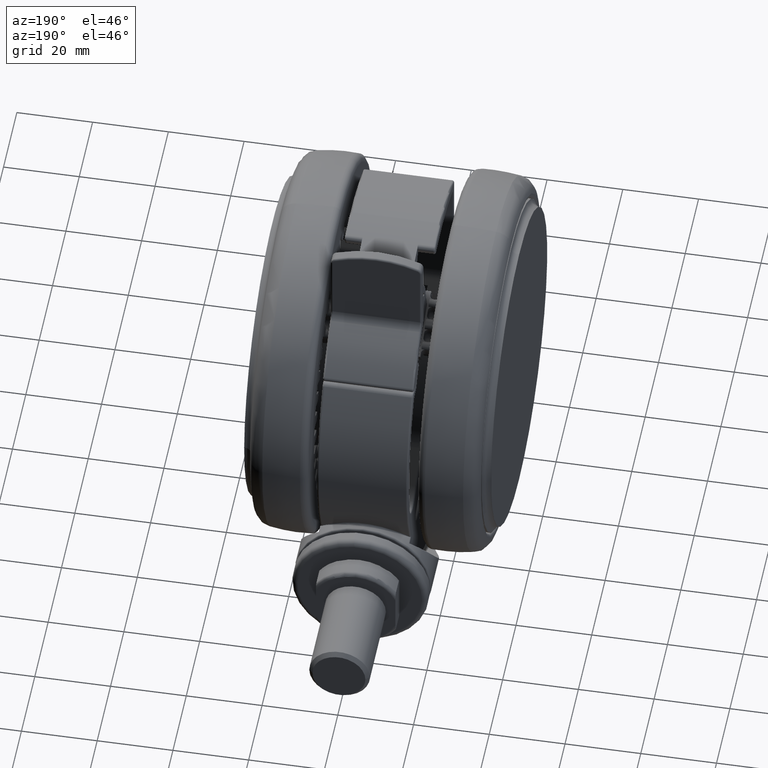
[diagram: clean part render]
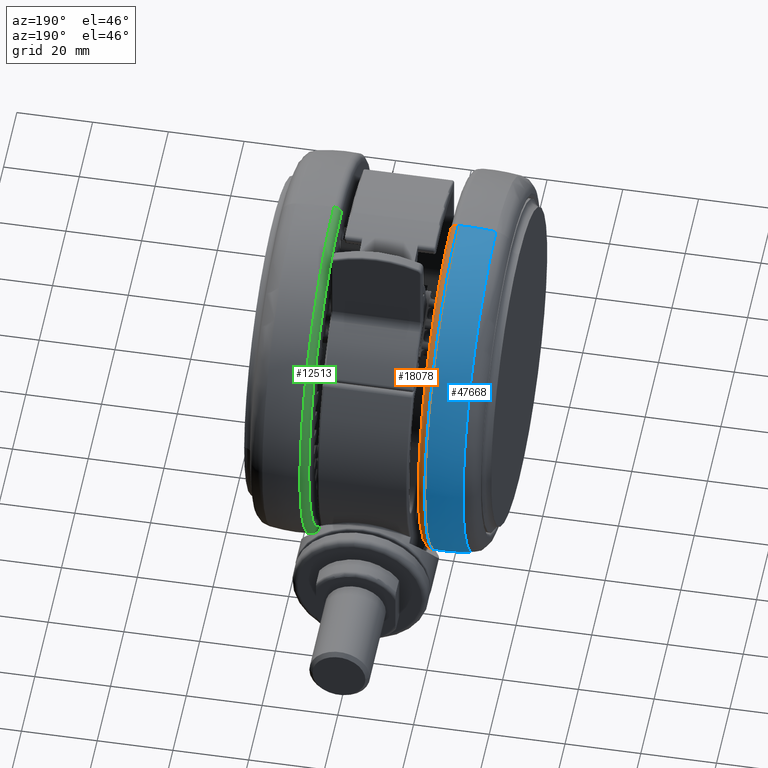
[diagram: same view with three faces highlighted in distinct colors, each labeled with its STEP entity id]
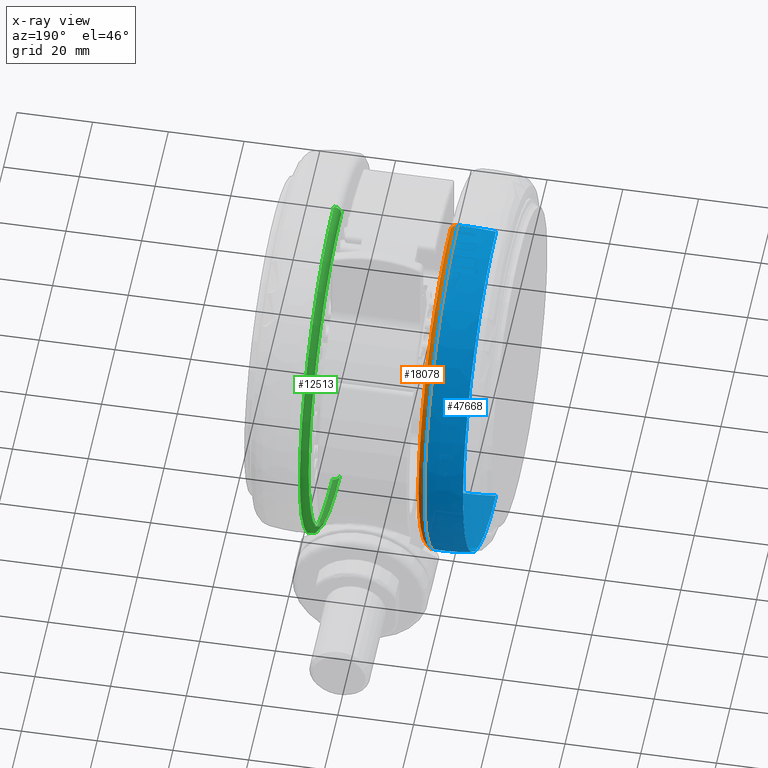
[diagram: x-ray of the same camera — body ghosted, the three highlighted faces saturated]
A machine part, auxiliary view with three faces highlighted in distinct colors.
The next image is the same camera in x-ray (body ghosted, the three faces saturated) — at least one of them is partly hidden behind the body in this view.
Their STEP definitions:

[orange] entity #18078 — the highlighted toroidal blend (fillet) surface has major radius 48 mm and minor (blend) radius 2 mm.
#1081 = VERTEX_POINT ( 'NONE', #33713 ) ;
#4143 = DIRECTION ( 'NONE',  ( -0.02026128721468460600, -0.9997947190500680000, 0.0000000000000000000 ) ) ;
#4256 = DIRECTION ( 'NONE',  ( 0.02026128721468458900, 0.9997947190500678900, 0.0000000000000000000 ) ) ;
#4986 = ORIENTED_EDGE ( 'NONE', *, *, #57773, .F. ) ;
#6960 = AXIS2_PLACEMENT_3D ( 'NONE', #55346, #17549, #61669 ) ;
#7252 = ORIENTED_EDGE ( 'NONE', *, *, #40043, .T. ) ;
#8065 = VERTEX_POINT ( 'NONE', #36881 ) ;
#16549 = CARTESIAN_POINT ( 'NONE',  ( 0.9725424830765194700, 47.99018331778844300, -49.09999999999984500 ) ) ;
#17549 = DIRECTION ( 'NONE',  ( -0.0000000000000000000, 0.0000000000000000000, -1.000000000000000000 ) ) ;
#18078 = ADVANCED_FACE ( 'NONE', ( #56397 ), #77117, .T. ) ;
#19636 = DIRECTION ( 'NONE',  ( -0.02026128721468459900, -0.9997947190500677800, 0.0000000000000000000 ) ) ;
#22890 = DIRECTION ( 'NONE',  ( -0.02026128721468448100, -0.9997947190500678900, 0.0000000000000000000 ) ) ;
#27137 = EDGE_CURVE ( 'NONE', #1081, #52486, #42143, .T. ) ;
#32041 = DIRECTION ( 'NONE',  ( -0.0000000000000000000, 0.0000000000000000000, -1.000000000000000000 ) ) ;
#33713 = CARTESIAN_POINT ( 'NONE',  ( -0.9725423849658322300, -47.99017363423747900, -47.09999999999985200 ) ) ;
#34971 = ORIENTED_EDGE ( 'NONE', *, *, #71186, .T. ) ;
#36881 = CARTESIAN_POINT ( 'NONE',  ( 0.9725424830765194700, 47.99018331778844300, -47.09999999999985200 ) ) ;
#39829 = AXIS2_PLACEMENT_3D ( 'NONE', #44728, #32041, #19636 ) ;
#40043 = EDGE_CURVE ( 'NONE', #1081, #8065, #53306, .T. ) ;
#42022 = DIRECTION ( 'NONE',  ( -0.0000000000000000000, 0.0000000000000000000, -1.000000000000000000 ) ) ;
#42134 = DIRECTION ( 'NONE',  ( 0.9997947190500678900, -0.02026128721468460300, -0.0000000000000000000 ) ) ;
#42143 = CIRCLE ( 'NONE', #43516, 1.999999999999999800 ) ;
#43516 = AXIS2_PLACEMENT_3D ( 'NONE', #79890, #42134, #4256 ) ;
#44728 = CARTESIAN_POINT ( 'NONE',  ( 4.905534659038757200E-008, 4.841775480546317600E-006, -49.09999999999984500 ) ) ;
#50566 = EDGE_LOOP ( 'NONE', ( #7252, #34971, #4986, #77276 ) ) ;
#52486 = VERTEX_POINT ( 'NONE', #74782 ) ;
#53281 = CIRCLE ( 'NONE', #6960, 50.00000000000000700 ) ;
#53306 = CIRCLE ( 'NONE', #64429, 48.00003196817215200 ) ;
#55346 = CARTESIAN_POINT ( 'NONE',  ( 4.905534659038757200E-008, 4.841775480546317600E-006, -49.08869196450866900 ) ) ;
#56397 = FACE_OUTER_BOUND ( 'NONE', #50566, .T. ) ;
#57773 = EDGE_CURVE ( 'NONE', #52486, #81918, #53281, .T. ) ;
#60676 = DIRECTION ( 'NONE',  ( -0.9997947190500678900, 0.02026128721468448100, 0.0000000000000000000 ) ) ;
#61486 = AXIS2_PLACEMENT_3D ( 'NONE', #16549, #60676, #22890 ) ;
#61669 = DIRECTION ( 'NONE',  ( -0.02026128721468460300, -0.9997947190500677800, 0.0000000000000000000 ) ) ;
#64429 = AXIS2_PLACEMENT_3D ( 'NONE', #79773, #42022, #4143 ) ;
#64491 = CARTESIAN_POINT ( 'NONE',  ( 1.013064409789570500, 49.98974079427887300, -49.08869196450866900 ) ) ;
#71186 = EDGE_CURVE ( 'NONE', #8065, #81918, #79631, .T. ) ;
#74782 = CARTESIAN_POINT ( 'NONE',  ( -1.013064311678883300, -49.98973111072790900, -49.08869196450866900 ) ) ;
#77117 = TOROIDAL_SURFACE ( 'NONE', #39829, 48.00003196817215900, 1.999999999999999100 ) ;
#77276 = ORIENTED_EDGE ( 'NONE', *, *, #27137, .F. ) ;
#79631 = CIRCLE ( 'NONE', #61486, 1.999999999999999800 ) ;
#79773 = CARTESIAN_POINT ( 'NONE',  ( 4.905534659038757200E-008, 4.841775480546317600E-006, -47.09999999999985200 ) ) ;
#79890 = CARTESIAN_POINT ( 'NONE',  ( -0.9725423849658322300, -47.99017363423747900, -49.09999999999984500 ) ) ;
#81918 = VERTEX_POINT ( 'NONE', #64491 ) ;

[blue] entity #47668 — the highlighted toroidal blend (fillet) surface has major radius 36.0786 mm and minor (blend) radius 86.08 mm.
#104 = AXIS2_PLACEMENT_3D ( 'NONE', #21795, #65928, #28143 ) ;
#5801 = CARTESIAN_POINT ( 'NONE',  ( 1.002373416269179800, 49.46219292677030700, -59.10420351503971400 ) ) ;
#6677 = VERTEX_POINT ( 'NONE', #5801 ) ;
#6960 = AXIS2_PLACEMENT_3D ( 'NONE', #55346, #17549, #61669 ) ;
#11699 = DIRECTION ( 'NONE',  ( -0.0000000000000000000, 0.0000000000000000000, -1.000000000000000000 ) ) ;
#12055 = ORIENTED_EDGE ( 'NONE', *, *, #28053, .T. ) ;
#12249 = CIRCLE ( 'NONE', #45715, 49.47234381472850400 ) ;
#15249 = CARTESIAN_POINT ( 'NONE',  ( -1.002373318158492600, -49.46218324321935000, -59.10420351503971400 ) ) ;
#17549 = DIRECTION ( 'NONE',  ( -0.0000000000000000000, 0.0000000000000000000, -1.000000000000000000 ) ) ;
#18283 = EDGE_CURVE ( 'NONE', #52486, #62014, #42559, .T. ) ;
#20182 = TOROIDAL_SURFACE ( 'NONE', #48132, -36.07862408987032400, 86.08000000000001300 ) ;
#21795 = CARTESIAN_POINT ( 'NONE',  ( 0.7309994140508480100, 36.07122267742039400, -49.57538981204889000 ) ) ;
#22487 = EDGE_LOOP ( 'NONE', ( #79722, #12055, #54558, #48412 ) ) ;
#28053 = EDGE_CURVE ( 'NONE', #81918, #6677, #68981, .T. ) ;
#28143 = DIRECTION ( 'NONE',  ( 0.02026128721468459900, 0.9997947190500677800, 0.0000000000000000000 ) ) ;
#30682 = CARTESIAN_POINT ( 'NONE',  ( -0.7309993159401505500, -36.07121299386943000, -49.57538981204889000 ) ) ;
#34998 = CARTESIAN_POINT ( 'NONE',  ( 4.905534659038757200E-008, 4.841775480546317600E-006, -49.57538981204889000 ) ) ;
#37042 = DIRECTION ( 'NONE',  ( -0.02026128721468447800, -0.9997947190500677800, 0.0000000000000000000 ) ) ;
#40914 = FACE_OUTER_BOUND ( 'NONE', #22487, .T. ) ;
#41052 = DIRECTION ( 'NONE',  ( -0.0000000000000000000, 0.0000000000000000000, -1.000000000000000000 ) ) ;
#42559 = CIRCLE ( 'NONE', #104, 86.08000000000002700 ) ;
#45715 = AXIS2_PLACEMENT_3D ( 'NONE', #49510, #11699, #55876 ) ;
#47668 = ADVANCED_FACE ( 'NONE', ( #40914 ), #20182, .T. ) ;
#48132 = AXIS2_PLACEMENT_3D ( 'NONE', #34998, #41052, #79087 ) ;
#48412 = ORIENTED_EDGE ( 'NONE', *, *, #18283, .F. ) ;
#49510 = CARTESIAN_POINT ( 'NONE',  ( 4.905534659038757200E-008, 4.841775480546317600E-006, -59.10420351503971400 ) ) ;
#51269 = EDGE_CURVE ( 'NONE', #62014, #6677, #12249, .T. ) ;
#52486 = VERTEX_POINT ( 'NONE', #74782 ) ;
#53281 = CIRCLE ( 'NONE', #6960, 50.00000000000000700 ) ;
#54558 = ORIENTED_EDGE ( 'NONE', *, *, #51269, .F. ) ;
#55346 = CARTESIAN_POINT ( 'NONE',  ( 4.905534659038757200E-008, 4.841775480546317600E-006, -49.08869196450866900 ) ) ;
#55876 = DIRECTION ( 'NONE',  ( -0.02026128721468459900, -0.9997947190500677800, 0.0000000000000000000 ) ) ;
#57773 = EDGE_CURVE ( 'NONE', #52486, #81918, #53281, .T. ) ;
#58357 = AXIS2_PLACEMENT_3D ( 'NONE', #30682, #74816, #37042 ) ;
#61669 = DIRECTION ( 'NONE',  ( -0.02026128721468460300, -0.9997947190500677800, 0.0000000000000000000 ) ) ;
#62014 = VERTEX_POINT ( 'NONE', #15249 ) ;
#64491 = CARTESIAN_POINT ( 'NONE',  ( 1.013064409789570500, 49.98974079427887300, -49.08869196450866900 ) ) ;
#65928 = DIRECTION ( 'NONE',  ( 0.9997947190500678900, -0.02026128721468460300, -0.0000000000000000000 ) ) ;
#68981 = CIRCLE ( 'NONE', #58357, 86.08000000000002700 ) ;
#74782 = CARTESIAN_POINT ( 'NONE',  ( -1.013064311678883300, -49.98973111072790900, -49.08869196450866900 ) ) ;
#74816 = DIRECTION ( 'NONE',  ( -0.9997947190500678900, 0.02026128721468448100, 0.0000000000000000000 ) ) ;
#79087 = DIRECTION ( 'NONE',  ( -0.02026128721468459900, -0.9997947190500677800, 0.0000000000000000000 ) ) ;
#79722 = ORIENTED_EDGE ( 'NONE', *, *, #57773, .T. ) ;
#81918 = VERTEX_POINT ( 'NONE', #64491 ) ;

[green] entity #12513 — the highlighted toroidal blend (fillet) surface has major radius 48 mm and minor (blend) radius 2 mm.
#841 = CIRCLE ( 'NONE', #19567, 50.00000000000000000 ) ;
#3465 = CARTESIAN_POINT ( 'NONE',  ( 1.633475509932271500E-013, -48.00003196817230100, -16.09999999999995500 ) ) ;
#3721 = DIRECTION ( 'NONE',  ( 0.0000000000000000000, 0.0000000000000000000, 1.000000000000000000 ) ) ;
#5667 = DIRECTION ( 'NONE',  ( 1.000000000000000000, 3.597816489175897900E-015, -0.0000000000000000000 ) ) ;
#9842 = DIRECTION ( 'NONE',  ( 3.475351809261156500E-015, -1.000000000000000000, 0.0000000000000000000 ) ) ;
#10210 = VERTEX_POINT ( 'NONE', #55862 ) ;
#10959 = CIRCLE ( 'NONE', #74665, 2.000000000000001800 ) ;
#12084 = CIRCLE ( 'NONE', #50009, 2.000000000000001800 ) ;
#12513 = ADVANCED_FACE ( 'NONE', ( #34099 ), #65645, .T. ) ;
#16748 = DIRECTION ( 'NONE',  ( -3.597816489175897900E-015, 1.000000000000000000, 0.0000000000000000000 ) ) ;
#19567 = AXIS2_PLACEMENT_3D ( 'NONE', #41603, #3721, #47950 ) ;
#20993 = AXIS2_PLACEMENT_3D ( 'NONE', #54568, #41297, #16748 ) ;
#24588 = CARTESIAN_POINT ( 'NONE',  ( -1.833602714107484800E-013, 49.99999999999985800, -16.11130803549113100 ) ) ;
#25375 = EDGE_CURVE ( 'NONE', #64751, #55572, #841, .T. ) ;
#31717 = ORIENTED_EDGE ( 'NONE', *, *, #73504, .T. ) ;
#34099 = FACE_OUTER_BOUND ( 'NONE', #73108, .T. ) ;
#34376 = CIRCLE ( 'NONE', #50799, 48.00003196817215900 ) ;
#36839 = CARTESIAN_POINT ( 'NONE',  ( -3.469446951953614200E-015, -1.387778780781445700E-013, -18.09999999999995200 ) ) ;
#37673 = CARTESIAN_POINT ( 'NONE',  ( 1.702981435111045200E-013, -50.00000000000013500, -16.11130803549113100 ) ) ;
#41297 = DIRECTION ( 'NONE',  ( 0.0000000000000000000, 0.0000000000000000000, 1.000000000000000000 ) ) ;
#41603 = CARTESIAN_POINT ( 'NONE',  ( -3.469446951953614200E-015, -1.387778780781445700E-013, -16.11130803549113100 ) ) ;
#42310 = ORIENTED_EDGE ( 'NONE', *, *, #64177, .T. ) ;
#43190 = DIRECTION ( 'NONE',  ( -3.597816489175897900E-015, 1.000000000000000000, 0.0000000000000000000 ) ) ;
#43546 = CARTESIAN_POINT ( 'NONE',  ( -1.761647534480136500E-013, 48.00003196817201700, -16.09999999999995500 ) ) ;
#43621 = EDGE_CURVE ( 'NONE', #10210, #64751, #10959, .T. ) ;
#47677 = DIRECTION ( 'NONE',  ( -1.000000000000000000, -3.475351809261162800E-015, 0.0000000000000000000 ) ) ;
#47950 = DIRECTION ( 'NONE',  ( -3.597816489175897900E-015, 1.000000000000000000, 0.0000000000000000000 ) ) ;
#49875 = DIRECTION ( 'NONE',  ( -3.597816489175891600E-015, 1.000000000000000000, 0.0000000000000000000 ) ) ;
#50009 = AXIS2_PLACEMENT_3D ( 'NONE', #3465, #47677, #9842 ) ;
#50799 = AXIS2_PLACEMENT_3D ( 'NONE', #36839, #80930, #43190 ) ;
#52453 = ORIENTED_EDGE ( 'NONE', *, *, #25375, .F. ) ;
#53513 = CARTESIAN_POINT ( 'NONE',  ( 1.668228472521658300E-013, -48.00003196817230100, -18.09999999999995200 ) ) ;
#54568 = CARTESIAN_POINT ( 'NONE',  ( -3.469446951953614200E-015, -1.387778780781445700E-013, -16.09999999999995500 ) ) ;
#55572 = VERTEX_POINT ( 'NONE', #37673 ) ;
#55862 = CARTESIAN_POINT ( 'NONE',  ( -1.761647534480136500E-013, 48.00003196817201700, -18.09999999999995200 ) ) ;
#64177 = EDGE_CURVE ( 'NONE', #10210, #73471, #34376, .T. ) ;
#64751 = VERTEX_POINT ( 'NONE', #24588 ) ;
#65645 = TOROIDAL_SURFACE ( 'NONE', #20993, 48.00003196817215900, 1.999999999999999100 ) ;
#73108 = EDGE_LOOP ( 'NONE', ( #42310, #31717, #52453, #73396 ) ) ;
#73396 = ORIENTED_EDGE ( 'NONE', *, *, #43621, .F. ) ;
#73471 = VERTEX_POINT ( 'NONE', #53513 ) ;
#73504 = EDGE_CURVE ( 'NONE', #73471, #55572, #12084, .T. ) ;
#74665 = AXIS2_PLACEMENT_3D ( 'NONE', #43546, #5667, #49875 ) ;
#80930 = DIRECTION ( 'NONE',  ( 0.0000000000000000000, 0.0000000000000000000, 1.000000000000000000 ) ) ;